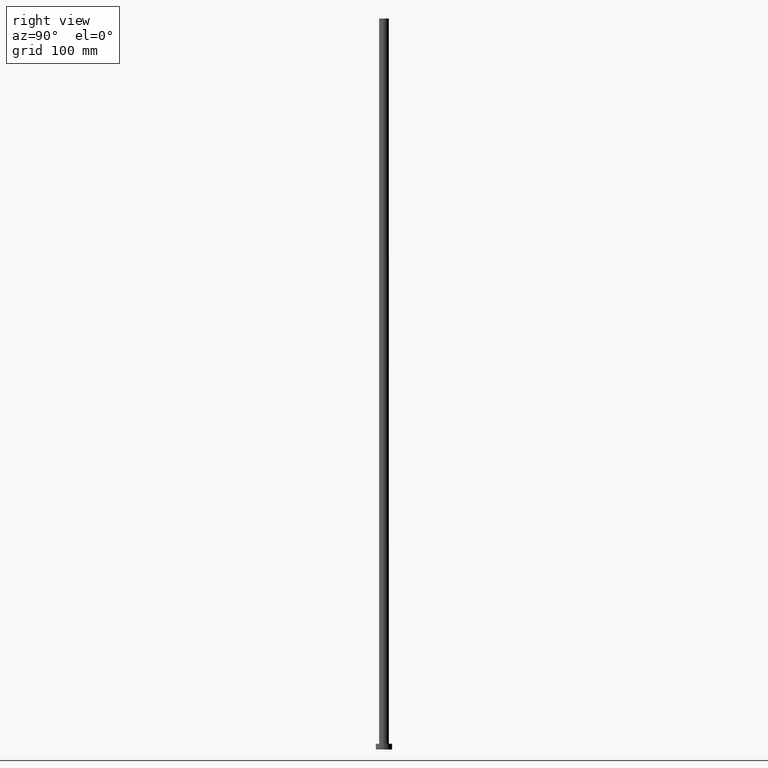
[diagram: clean part render]
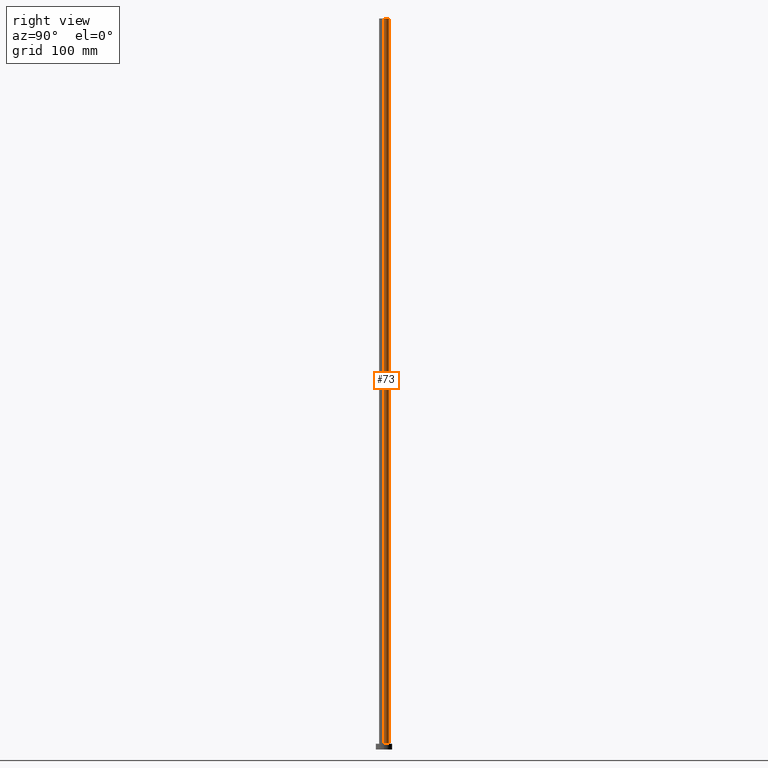
[diagram: same view with one face highlighted and labeled with its STEP entity id]
A machine part, right view. The second image highlights one B-rep face of the part: STEP entity #73.
In plain terms, the highlighted cylindrical surface (edge-blend (fillet) strip) has radius 4.25 mm, axis along (-0, -0, -1).
Its self-contained STEP definition (entity closure, byte-faithful):
#1 = VECTOR ( 'NONE', #229, 1000.000000000000000 ) ;
#7 = VERTEX_POINT ( 'NONE', #142 ) ;
#9 = FACE_OUTER_BOUND ( 'NONE', #225, .T. ) ;
#10 = CIRCLE ( 'NONE', #14, 4.250000000000000000 ) ;
#14 = AXIS2_PLACEMENT_3D ( 'NONE', #170, #149, #194 ) ;
#19 = AXIS2_PLACEMENT_3D ( 'NONE', #29, #110, #131 ) ;
#22 = VERTEX_POINT ( 'NONE', #185 ) ;
#29 = CARTESIAN_POINT ( 'NONE',  ( 0.000000000000000000, 0.000000000000000000, 5.000000000000000000 ) ) ;
#55 = CYLINDRICAL_SURFACE ( 'NONE', #172, 4.250000000000000000 ) ;
#65 = VECTOR ( 'NONE', #165, 1000.000000000000000 ) ;
#70 = VERTEX_POINT ( 'NONE', #207 ) ;
#73 = ADVANCED_FACE ( 'NONE', ( #9 ), #55, .T. ) ;
#74 = LINE ( 'NONE', #247, #1 ) ;
#78 = EDGE_CURVE ( 'NONE', #70, #7, #173, .T. ) ;
#81 = EDGE_CURVE ( 'NONE', #112, #7, #167, .T. ) ;
#91 = DIRECTION ( 'NONE',  ( -1.000000000000000000, 0.000000000000000000, 0.000000000000000000 ) ) ;
#110 = DIRECTION ( 'NONE',  ( 0.000000000000000000, 0.000000000000000000, 1.000000000000000000 ) ) ;
#112 = VERTEX_POINT ( 'NONE', #246 ) ;
#126 = ORIENTED_EDGE ( 'NONE', *, *, #78, .T. ) ;
#127 = EDGE_CURVE ( 'NONE', #22, #70, #74, .T. ) ;
#131 = DIRECTION ( 'NONE',  ( 1.000000000000000000, 0.000000000000000000, 0.000000000000000000 ) ) ;
#142 = CARTESIAN_POINT ( 'NONE',  ( -4.250000000000000000, 0.000000000000000000, 5.000000000000000000 ) ) ;
#149 = DIRECTION ( 'NONE',  ( 0.000000000000000000, 0.000000000000000000, 1.000000000000000000 ) ) ;
#165 = DIRECTION ( 'NONE',  ( -0.000000000000000000, -0.000000000000000000, -1.000000000000000000 ) ) ;
#167 = LINE ( 'NONE', #187, #65 ) ;
#169 = CARTESIAN_POINT ( 'NONE',  ( 0.000000000000000000, 0.000000000000000000, 630.0000000000000000 ) ) ;
#170 = CARTESIAN_POINT ( 'NONE',  ( 0.000000000000000000, 0.000000000000000000, 630.0000000000000000 ) ) ;
#172 = AXIS2_PLACEMENT_3D ( 'NONE', #169, #248, #91 ) ;
#173 = CIRCLE ( 'NONE', #19, 4.250000000000000000 ) ;
#185 = CARTESIAN_POINT ( 'NONE',  ( 4.250000000000000000, 5.204748896376250699E-16, 630.0000000000000000 ) ) ;
#187 = CARTESIAN_POINT ( 'NONE',  ( -4.250000000000000000, 0.000000000000000000, 630.0000000000000000 ) ) ;
#194 = DIRECTION ( 'NONE',  ( 1.000000000000000000, 0.000000000000000000, 0.000000000000000000 ) ) ;
#201 = ORIENTED_EDGE ( 'NONE', *, *, #206, .F. ) ;
#205 = ORIENTED_EDGE ( 'NONE', *, *, #127, .T. ) ;
#206 = EDGE_CURVE ( 'NONE', #22, #112, #10, .T. ) ;
#207 = CARTESIAN_POINT ( 'NONE',  ( 4.250000000000000000, 5.204748896376250699E-16, 5.000000000000000000 ) ) ;
#220 = ORIENTED_EDGE ( 'NONE', *, *, #81, .F. ) ;
#225 = EDGE_LOOP ( 'NONE', ( #201, #205, #126, #220 ) ) ;
#229 = DIRECTION ( 'NONE',  ( -0.000000000000000000, -0.000000000000000000, -1.000000000000000000 ) ) ;
#246 = CARTESIAN_POINT ( 'NONE',  ( -4.250000000000000000, 0.000000000000000000, 630.0000000000000000 ) ) ;
#247 = CARTESIAN_POINT ( 'NONE',  ( 4.250000000000000000, 5.204748896376250699E-16, 630.0000000000000000 ) ) ;
#248 = DIRECTION ( 'NONE',  ( -0.000000000000000000, -0.000000000000000000, -1.000000000000000000 ) ) ;